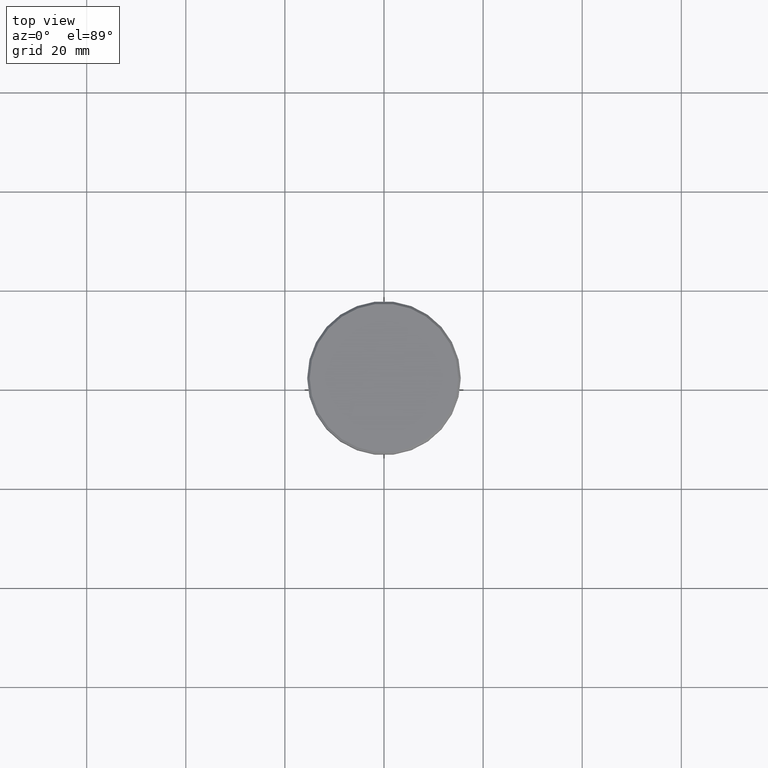
[diagram: clean part render]
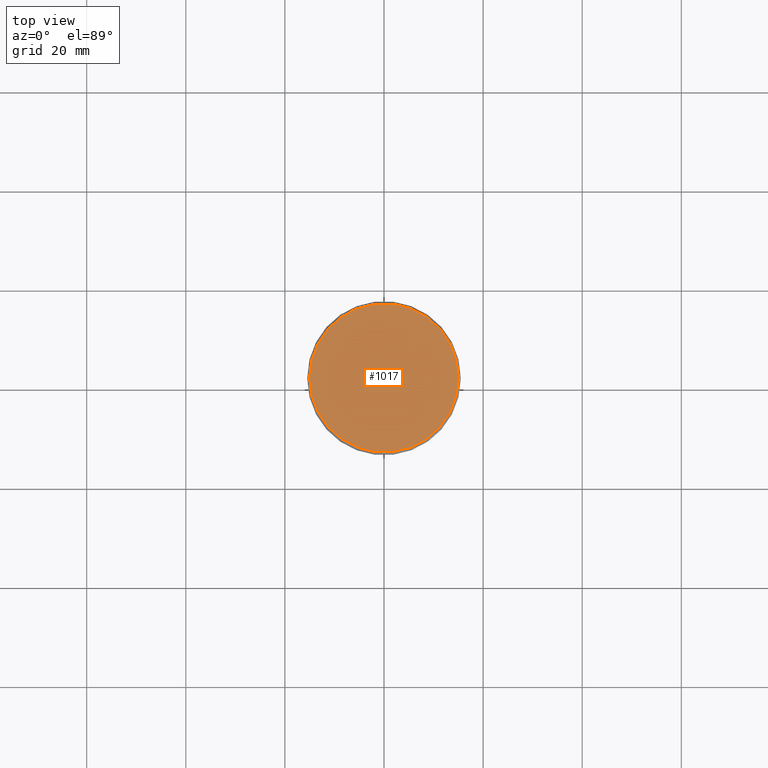
[diagram: same view with one face highlighted and labeled with its STEP entity id]
A machine part, top view. The second image highlights one B-rep face of the part: STEP entity #1017.
In plain terms, the highlighted planar face has unit normal (0, -0, 1).
Its self-contained STEP definition (entity closure, byte-faithful):
#33 = CARTESIAN_POINT ( 'NONE',  ( 0.000000000000000000, 0.000000000000000000, 0.000000000000000000 ) ) ;
#41 = DIRECTION ( 'NONE',  ( -0.000000000000000000, -0.000000000000000000, 1.000000000000000000 ) ) ;
#111 = AXIS2_PLACEMENT_3D ( 'NONE', #1059, #993, #169 ) ;
#132 = CARTESIAN_POINT ( 'NONE',  ( 14.99999999999998579, 1.867586368699712587E-15, 0.000000000000000000 ) ) ;
#168 = EDGE_CURVE ( 'NONE', #835, #730, #740, .T. ) ;
#169 = DIRECTION ( 'NONE',  ( 1.000000000000000000, 0.000000000000000000, 0.000000000000000000 ) ) ;
#224 = AXIS2_PLACEMENT_3D ( 'NONE', #33, #656, #467 ) ;
#347 = ORIENTED_EDGE ( 'NONE', *, *, #168, .T. ) ;
#384 = ORIENTED_EDGE ( 'NONE', *, *, #841, .T. ) ;
#427 = CARTESIAN_POINT ( 'NONE',  ( 0.000000000000000000, 0.000000000000000000, 0.000000000000000000 ) ) ;
#467 = DIRECTION ( 'NONE',  ( 1.000000000000000000, 0.000000000000000000, 0.000000000000000000 ) ) ;
#491 = EDGE_LOOP ( 'NONE', ( #347, #384 ) ) ;
#656 = DIRECTION ( 'NONE',  ( -0.000000000000000000, -0.000000000000000000, 1.000000000000000000 ) ) ;
#696 = CARTESIAN_POINT ( 'NONE',  ( -14.99999999999998579, 0.000000000000000000, 0.000000000000000000 ) ) ;
#704 = DIRECTION ( 'NONE',  ( 1.000000000000000000, 0.000000000000000000, 0.000000000000000000 ) ) ;
#721 = CIRCLE ( 'NONE', #938, 14.99999999999998579 ) ;
#730 = VERTEX_POINT ( 'NONE', #132 ) ;
#740 = CIRCLE ( 'NONE', #224, 14.99999999999998579 ) ;
#793 = PLANE ( 'NONE',  #111 ) ;
#800 = FACE_OUTER_BOUND ( 'NONE', #491, .T. ) ;
#835 = VERTEX_POINT ( 'NONE', #696 ) ;
#841 = EDGE_CURVE ( 'NONE', #730, #835, #721, .T. ) ;
#938 = AXIS2_PLACEMENT_3D ( 'NONE', #427, #41, #704 ) ;
#993 = DIRECTION ( 'NONE',  ( 0.000000000000000000, -0.000000000000000000, 1.000000000000000000 ) ) ;
#1017 = ADVANCED_FACE ( 'NONE', ( #800 ), #793, .T. ) ;
#1059 = CARTESIAN_POINT ( 'NONE',  ( 0.000000000000000000, 0.000000000000000000, 0.000000000000000000 ) ) ;